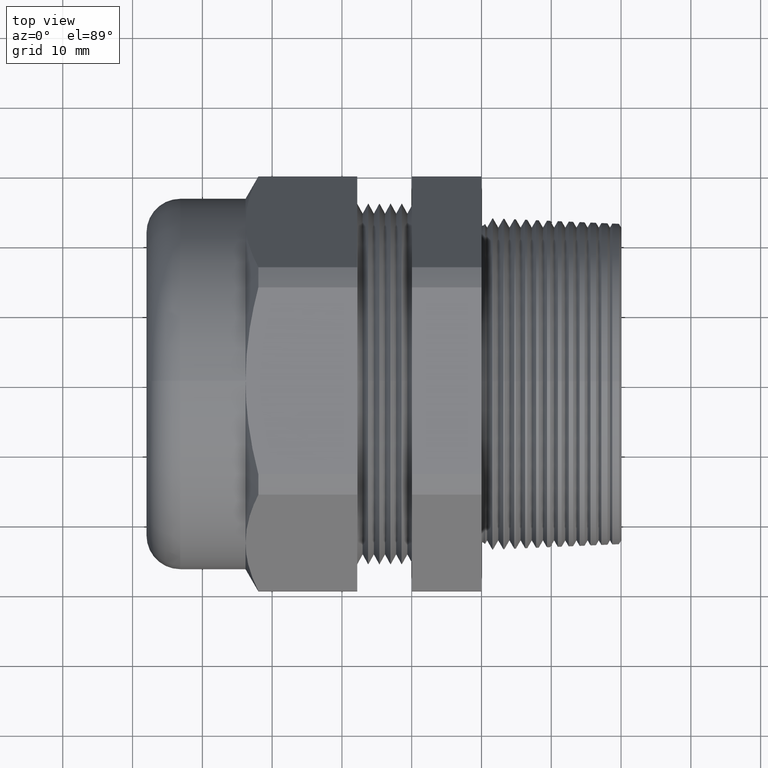
[diagram: clean part render]
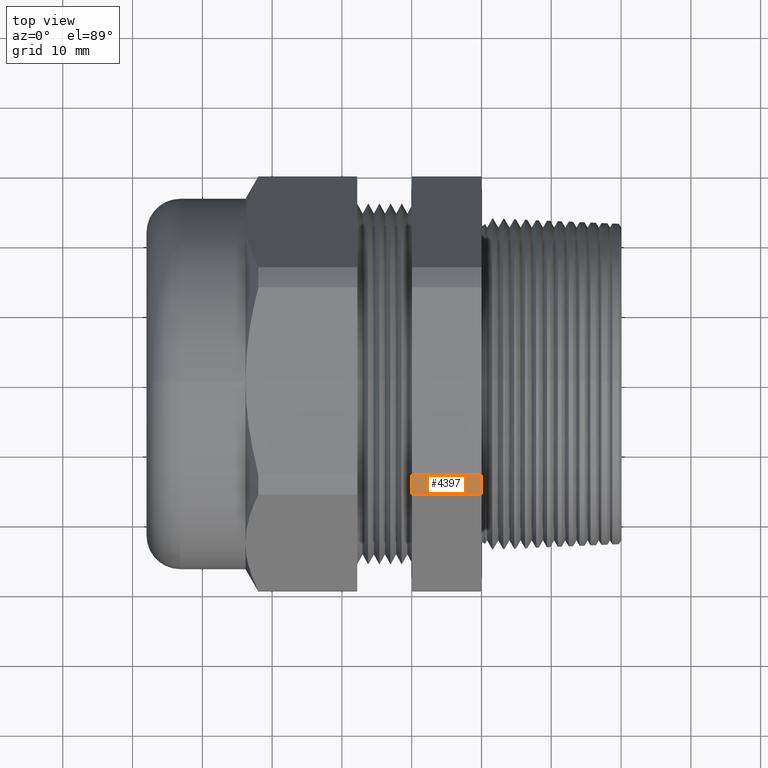
[diagram: same view with one face highlighted and labeled with its STEP entity id]
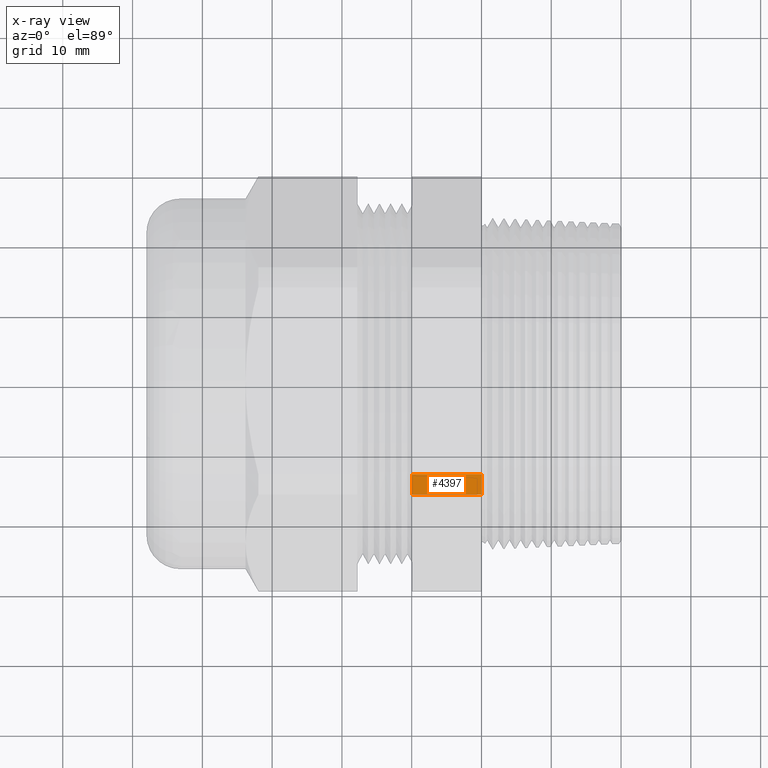
[diagram: x-ray of the same camera — body ghosted, the highlighted face saturated]
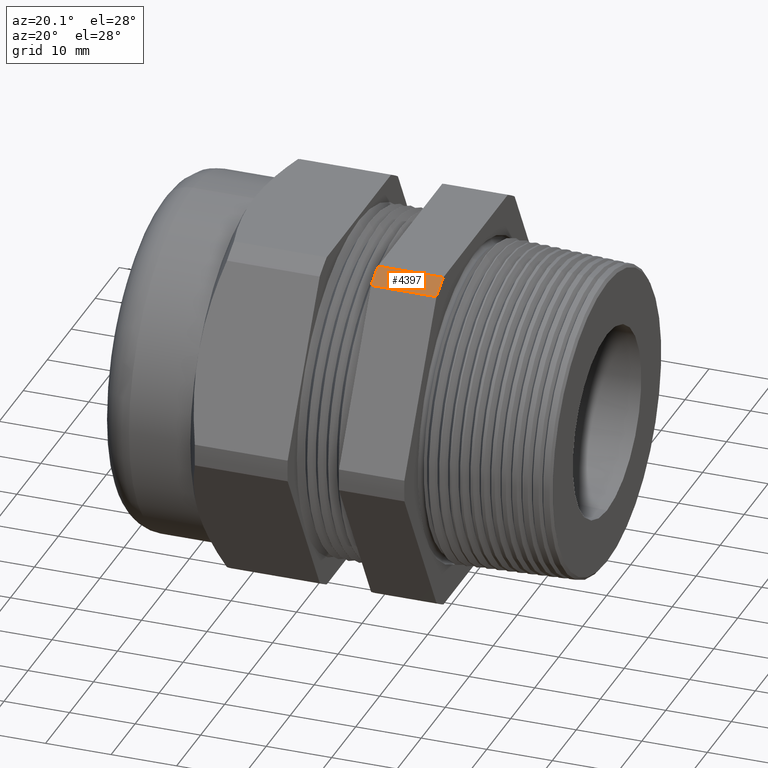
[diagram: same view with one face highlighted and labeled with its STEP entity id]
A machine part, top view. The second image highlights one B-rep face of the part: STEP entity #4397.
The next image is the same camera in x-ray: the body ghosted, the highlighted face saturated — about 0% of this face is hidden behind the body in this view.
A second angle (auxiliary view) of the same face is appended — the face is thin or edge-on in the first view.
In plain terms, the highlighted cylindrical surface (partial cylindrical patch) has radius 29.7282 mm, axis along (-1, 0, 0).
Its self-contained STEP definition (entity closure, byte-faithful):
#903 = VERTEX_POINT ( 'NONE', #2982 ) ;
#906 = EDGE_CURVE ( 'NONE', #907, #903, #2981, .T. ) ;
#907 = VERTEX_POINT ( 'NONE', #2976 ) ;
#2976 = CARTESIAN_POINT ( 'NONE',  ( 0.0000000000000000000, -0.6414575745047403900, 0.9789628900578897200 ) ) ;
#2977 = DIRECTION ( 'NONE',  ( 0.0000000000000000000, 0.0000000000000000000, 1.000000000000000000 ) ) ;
#2978 = DIRECTION ( 'NONE',  ( -1.000000000000000000, 0.0000000000000000000, 0.0000000000000000000 ) ) ;
#2979 = CARTESIAN_POINT ( 'NONE',  ( 0.0000000000000000000, 0.0000000000000000000, 0.0000000000000000000 ) ) ;
#2980 = AXIS2_PLACEMENT_3D ( 'NONE', #2979, #2978, #2977 ) ;
#2981 = CIRCLE ( 'NONE', #2980, 1.170400000000000100 ) ;
#2982 = CARTESIAN_POINT ( 'NONE',  ( 0.0000000000000000000, -0.5270779448999936000, 1.044999999999999900 ) ) ;
#4036 = DIRECTION ( 'NONE',  ( 0.0000000000000000000, 0.0000000000000000000, 1.000000000000000000 ) ) ;
#4037 = DIRECTION ( 'NONE',  ( -1.000000000000000000, 0.0000000000000000000, 0.0000000000000000000 ) ) ;
#4038 = AXIS2_PLACEMENT_3D ( 'NONE', #4046, #4037, #4036 ) ;
#4040 = CYLINDRICAL_SURFACE ( 'NONE', #4038, 1.170400000000000100 ) ;
#4041 = FACE_OUTER_BOUND ( 'NONE', #4394, .T. ) ;
#4046 = CARTESIAN_POINT ( 'NONE',  ( -0.7238591030180623300, 0.0000000000000000000, 0.0000000000000000000 ) ) ;
#4049 = CARTESIAN_POINT ( 'NONE',  ( -0.3930348258706468100, -0.5270779448999936000, 1.044999999999999900 ) ) ;
#4050 = DIRECTION ( 'NONE',  ( 0.0000000000000000000, 0.0000000000000000000, 1.000000000000000000 ) ) ;
#4051 = DIRECTION ( 'NONE',  ( -1.000000000000000000, 0.0000000000000000000, 0.0000000000000000000 ) ) ;
#4052 = CARTESIAN_POINT ( 'NONE',  ( -0.3930348258706468100, 0.0000000000000000000, 0.0000000000000000000 ) ) ;
#4053 = AXIS2_PLACEMENT_3D ( 'NONE', #4052, #4051, #4050 ) ;
#4054 = CIRCLE ( 'NONE', #4053, 1.170400000000000100 ) ;
#4055 = DIRECTION ( 'NONE',  ( 1.000000000000000000, 0.0000000000000000000, 0.0000000000000000000 ) ) ;
#4056 = VECTOR ( 'NONE', #4055, 39.37007874015748100 ) ;
#4057 = CARTESIAN_POINT ( 'NONE',  ( -4.674745017870971100, -0.5270779448999936000, 1.044999999999999900 ) ) ;
#4058 = LINE ( 'NONE', #4057, #4056 ) ;
#4136 = CARTESIAN_POINT ( 'NONE',  ( -0.3930348258706468100, -0.6414575745047412800, 0.9789628900578891700 ) ) ;
#4137 = DIRECTION ( 'NONE',  ( 1.000000000000000000, 0.0000000000000000000, 0.0000000000000000000 ) ) ;
#4138 = VECTOR ( 'NONE', #4137, 39.37007874015748100 ) ;
#4139 = CARTESIAN_POINT ( 'NONE',  ( -4.674745017870971100, -0.6414575745047403900, 0.9789628900578897200 ) ) ;
#4140 = LINE ( 'NONE', #4139, #4138 ) ;
#4388 = ORIENTED_EDGE ( 'NONE', *, *, #4391, .F. ) ;
#4391 = EDGE_CURVE ( 'NONE', #4395, #903, #4058, .T. ) ;
#4392 = EDGE_CURVE ( 'NONE', #4473, #4395, #4054, .T. ) ;
#4393 = ORIENTED_EDGE ( 'NONE', *, *, #4392, .F. ) ;
#4394 = EDGE_LOOP ( 'NONE', ( #4388, #4393, #4471, #4472 ) ) ;
#4395 = VERTEX_POINT ( 'NONE', #4049 ) ;
#4397 = ADVANCED_FACE ( 'NONE', ( #4041 ), #4040, .T. ) ;
#4470 = EDGE_CURVE ( 'NONE', #4473, #907, #4140, .T. ) ;
#4471 = ORIENTED_EDGE ( 'NONE', *, *, #4470, .T. ) ;
#4472 = ORIENTED_EDGE ( 'NONE', *, *, #906, .T. ) ;
#4473 = VERTEX_POINT ( 'NONE', #4136 ) ;